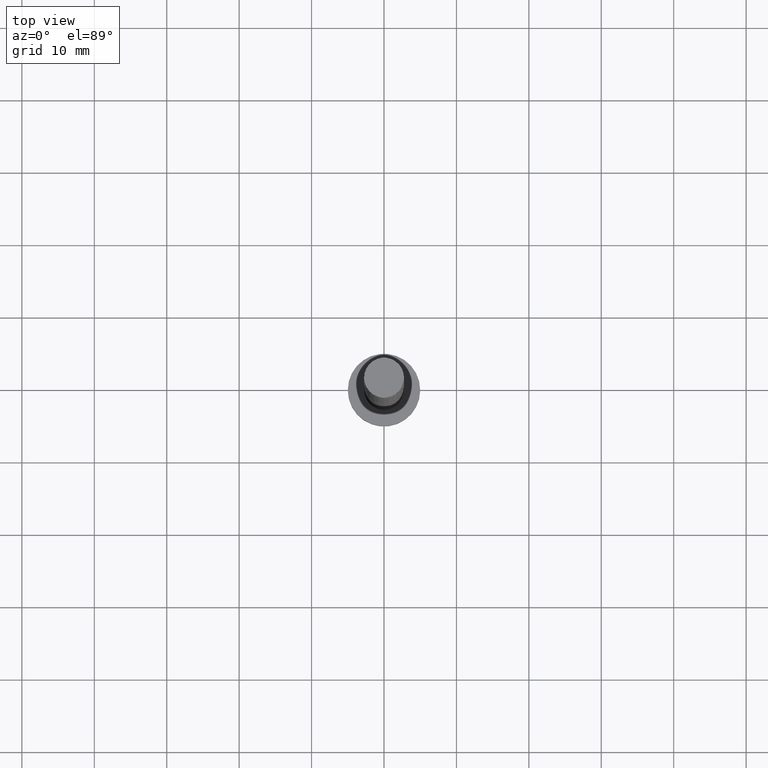
[diagram: clean part render]
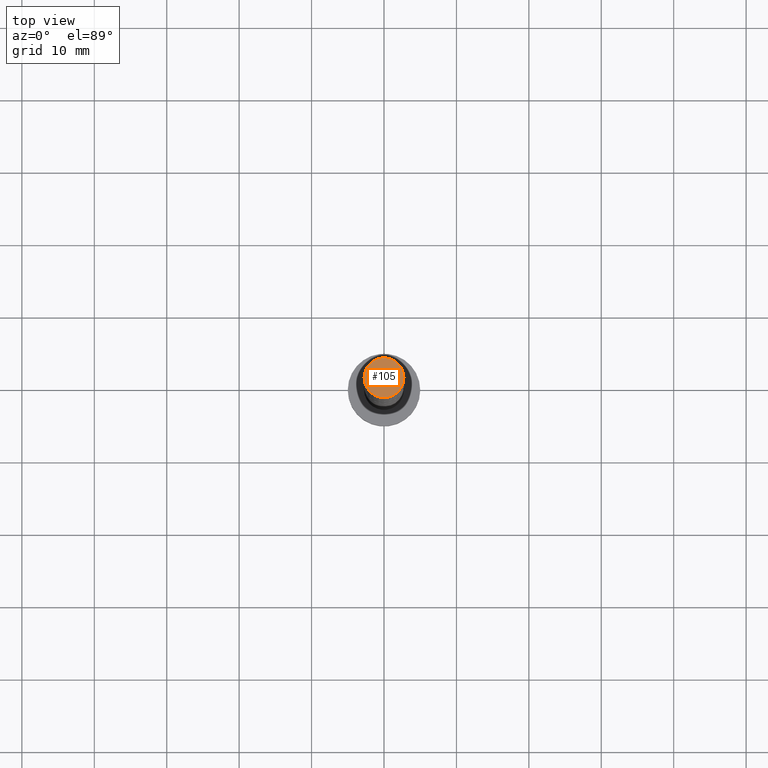
[diagram: same view with one face highlighted and labeled with its STEP entity id]
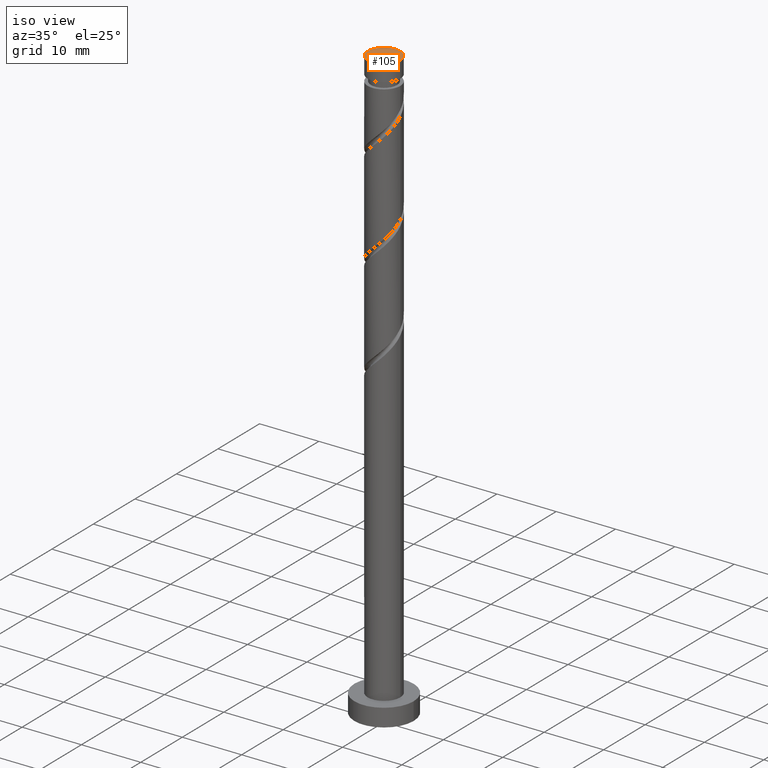
[diagram: same view with one face highlighted and labeled with its STEP entity id]
A machine part, top view. The second image highlights one B-rep face of the part: STEP entity #105.
A second angle (iso view) of the same face is appended — the face is thin or edge-on in the first view.
In plain terms, the highlighted planar face has unit normal (0, 0, 1).
Its self-contained STEP definition (entity closure, byte-faithful):
#22 = DIRECTION ( 'NONE',  ( 0.000000000000000000, 0.000000000000000000, 1.000000000000000000 ) ) ;
#70 = CARTESIAN_POINT ( 'NONE',  ( 2.750000000000000000, 3.367778697655220519E-16, 100.0000000000000000 ) ) ;
#105 = ADVANCED_FACE ( 'NONE', ( #160 ), #408, .T. ) ;
#160 = FACE_OUTER_BOUND ( 'NONE', #571, .T. ) ;
#260 = EDGE_CURVE ( 'NONE', #741, #620, #1398, .T. ) ;
#408 = PLANE ( 'NONE',  #721 ) ;
#513 = DIRECTION ( 'NONE',  ( 0.000000000000000000, 0.000000000000000000, 1.000000000000000000 ) ) ;
#520 = CIRCLE ( 'NONE', #1017, 2.750000000000000000 ) ;
#571 = EDGE_LOOP ( 'NONE', ( #1382, #1203 ) ) ;
#620 = VERTEX_POINT ( 'NONE', #70 ) ;
#630 = EDGE_CURVE ( 'NONE', #620, #741, #520, .T. ) ;
#686 = DIRECTION ( 'NONE',  ( 1.000000000000000000, 0.000000000000000000, 0.000000000000000000 ) ) ;
#721 = AXIS2_PLACEMENT_3D ( 'NONE', #1196, #513, #1181 ) ;
#741 = VERTEX_POINT ( 'NONE', #1011 ) ;
#996 = CARTESIAN_POINT ( 'NONE',  ( 0.000000000000000000, 0.000000000000000000, 100.0000000000000000 ) ) ;
#1011 = CARTESIAN_POINT ( 'NONE',  ( -2.750000000000000000, 0.000000000000000000, 100.0000000000000000 ) ) ;
#1017 = AXIS2_PLACEMENT_3D ( 'NONE', #996, #1102, #1222 ) ;
#1102 = DIRECTION ( 'NONE',  ( 0.000000000000000000, 0.000000000000000000, 1.000000000000000000 ) ) ;
#1181 = DIRECTION ( 'NONE',  ( 1.000000000000000000, 0.000000000000000000, -0.000000000000000000 ) ) ;
#1196 = CARTESIAN_POINT ( 'NONE',  ( 0.000000000000000000, 0.000000000000000000, 100.0000000000000000 ) ) ;
#1203 = ORIENTED_EDGE ( 'NONE', *, *, #630, .T. ) ;
#1222 = DIRECTION ( 'NONE',  ( 1.000000000000000000, 0.000000000000000000, 0.000000000000000000 ) ) ;
#1303 = AXIS2_PLACEMENT_3D ( 'NONE', #1380, #22, #686 ) ;
#1380 = CARTESIAN_POINT ( 'NONE',  ( 0.000000000000000000, 0.000000000000000000, 100.0000000000000000 ) ) ;
#1382 = ORIENTED_EDGE ( 'NONE', *, *, #260, .T. ) ;
#1398 = CIRCLE ( 'NONE', #1303, 2.750000000000000000 ) ;